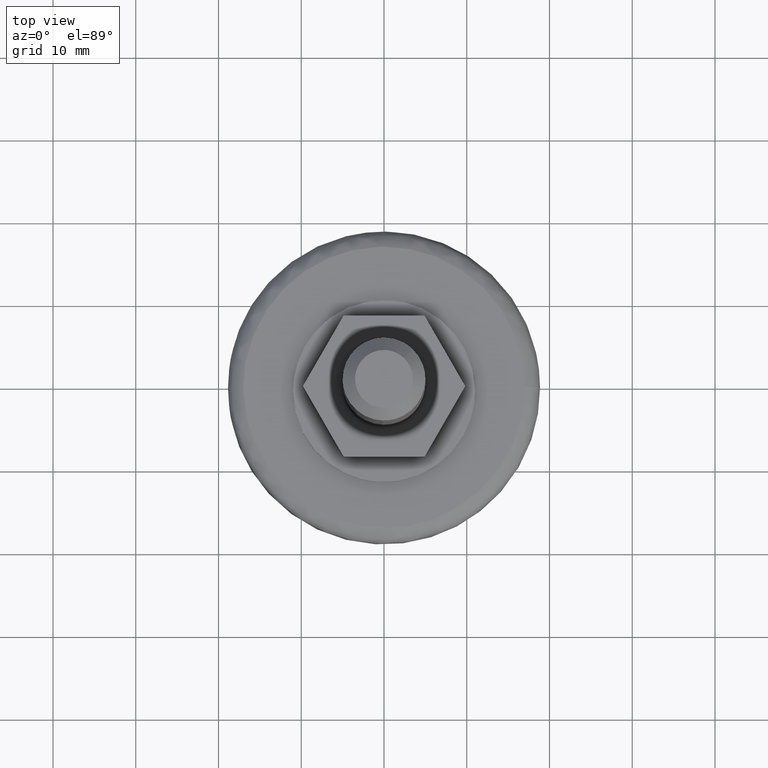
[diagram: clean part render]
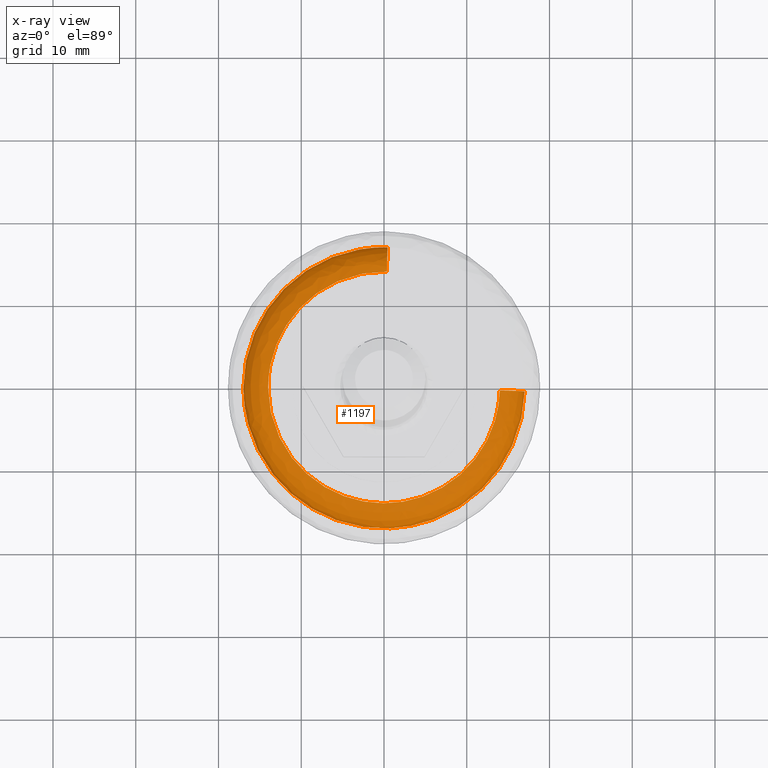
[diagram: x-ray — body ghosted, one internal face saturated and labeled with its STEP entity id]
A machine part, top view, then the same camera in x-ray: the body is ghosted and one INTERNAL B-rep face — a face not visible from any outside direction — is saturated and labeled: STEP entity #1197.
In plain terms, the highlighted face is a freeform B-spline surface patch.
Its self-contained STEP definition (entity closure, byte-faithful):
#910=CARTESIAN_POINT('',(-13.390967939593541,-10.472916386602281,7.899999999999952));
#911=VERTEX_POINT('',#910);
#912=CARTESIAN_POINT('',(-17.0,0.0,7.900000000000000));
#913=VERTEX_POINT('',#912);
#914=CARTESIAN_POINT('',(-13.390967939593542,-10.472916386602279,7.899999999999952));
#915=CARTESIAN_POINT('',(-17.000000000000007,-5.858305629689744,7.900000000000000));
#916=CARTESIAN_POINT('',(-17.0,0.0,7.900000000000000));
#924=(BOUNDED_CURVE()B_SPLINE_CURVE(2,(#914,#915,#916),.UNSPECIFIED.,.F.,.U.)B_SPLINE_CURVE_WITH_KNOTS((3,3),(0.393382016276259,0.500000000000000),.UNSPECIFIED.)CURVE()GEOMETRIC_REPRESENTATION_ITEM()RATIONAL_B_SPLINE_CURVE((0.856720372540550,0.875089262255013,1.0))REPRESENTATION_ITEM(''));
#925=EDGE_CURVE('',#911,#913,#924,.T.);
#927=CARTESIAN_POINT('',(0.427211622572553,16.994631217815201,7.900000000309981));
#928=VERTEX_POINT('',#927);
#929=CARTESIAN_POINT('',(-17.0,0.0,7.900000000000000));
#930=CARTESIAN_POINT('',(-17.000000000000004,17.000000000000004,7.900000000000000));
#931=CARTESIAN_POINT('',(0.0,17.0,7.900000000000000));
#932=CARTESIAN_POINT('',(0.213639546133312,17.000000000000004,7.900000000000000));
#933=CARTESIAN_POINT('',(0.427211622572553,16.994631217815197,7.900000000309981));
#941=(BOUNDED_CURVE()B_SPLINE_CURVE(2,(#929,#930,#931,#932,#933),.UNSPECIFIED.,.F.,.U.)B_SPLINE_CURVE_WITH_KNOTS((3,2,3),(0.500000000000000,0.750000000000000,0.754420108230931),.UNSPECIFIED.)CURVE()GEOMETRIC_REPRESENTATION_ITEM()RATIONAL_B_SPLINE_CURVE((1.0,0.707106781186548,1.0,0.994821521090956,0.989826157679908))REPRESENTATION_ITEM(''));
#942=EDGE_CURVE('',#913,#928,#941,.T.);
#959=CARTESIAN_POINT('',(16.994631217815868,-0.427211622545770,7.900000000310616));
#960=VERTEX_POINT('',#959);
#974=CARTESIAN_POINT('',(0.741525099336230,-16.983819962747901,7.900000000000286));
#975=VERTEX_POINT('',#974);
#976=CARTESIAN_POINT('',(16.994631217815876,-0.427211622545770,7.900000000310616));
#977=CARTESIAN_POINT('',(16.595831422271555,-16.291610195051103,7.900000000013279));
#978=CARTESIAN_POINT('',(0.741525099336230,-16.983819962747901,7.900000000000286));
#986=(BOUNDED_CURVE()B_SPLINE_CURVE(2,(#976,#977,#978),.UNSPECIFIED.,.F.,.U.)B_SPLINE_CURVE_WITH_KNOTS((3,3),(0.004420108230378,0.242354584450260),.UNSPECIFIED.)CURVE()GEOMETRIC_REPRESENTATION_ITEM()RATIONAL_B_SPLINE_CURVE((0.989826157681156,0.720925688587702,0.982633526816932))REPRESENTATION_ITEM(''));
#987=EDGE_CURVE('',#960,#975,#986,.T.);
#1065=CARTESIAN_POINT('',(0.741525099336230,-16.983819962747901,7.900000000000286));
#1066=CARTESIAN_POINT('',(0.370939073433604,-17.000000000000004,7.900000000000000));
#1067=CARTESIAN_POINT('',(0.0,-17.0,7.900000000000000));
#1068=CARTESIAN_POINT('',(-8.286213657466316,-16.999999999999996,7.900000000000000));
#1069=CARTESIAN_POINT('',(-13.390967939593542,-10.472916386602279,7.899999999999952));
#1077=(BOUNDED_CURVE()B_SPLINE_CURVE(2,(#1065,#1066,#1067,#1068,#1069),.UNSPECIFIED.,.F.,.U.)B_SPLINE_CURVE_WITH_KNOTS((3,2,3),(0.242354584450260,0.250000000000000,0.393382016276259),.UNSPECIFIED.)CURVE()GEOMETRIC_REPRESENTATION_ITEM()RATIONAL_B_SPLINE_CURVE((0.982633526816932,0.991042838521880,1.0,0.832017518931534,0.856720372540550))REPRESENTATION_ITEM(''));
#1078=EDGE_CURVE('',#975,#911,#1077,.T.);
#1100=CARTESIAN_POINT('',(0.427028145771030,16.987332446420989,7.690827446366622));
#1101=CARTESIAN_POINT('',(-16.560304300649960,17.414360592192015,7.690827446366623));
#1102=CARTESIAN_POINT('',(-16.987332446420989,0.427028145771031,7.690827446366622));
#1103=CARTESIAN_POINT('',(-17.414360592192015,-16.560304300649946,7.690827446366623));
#1104=CARTESIAN_POINT('',(-0.427028145771036,-16.987332446420989,7.690827446366622));
#1105=CARTESIAN_POINT('',(16.560304300649946,-17.414360592192015,7.690827446366623));
#1106=CARTESIAN_POINT('',(16.987332446420989,-0.427028145771037,7.690827446366622));
#1107=CARTESIAN_POINT('',(0.433072405922087,17.227775278106645,11.132007044478161));
#1108=CARTESIAN_POINT('',(-16.794702872184562,17.660847684028738,11.132007044478161));
#1109=CARTESIAN_POINT('',(-17.227775278106645,0.433072405922088,11.132007044478161));
#1110=CARTESIAN_POINT('',(-17.660847684028742,-16.794702872184558,11.132007044478161));
#1111=CARTESIAN_POINT('',(-0.433072405922093,-17.227775278106645,11.132007044478161));
#1112=CARTESIAN_POINT('',(16.794702872184558,-17.660847684028742,11.132007044478161));
#1113=CARTESIAN_POINT('',(17.227775278106645,-0.433072405922094,11.132007044478161));
#1114=CARTESIAN_POINT('',(0.346592976570226,13.787592632711320,10.892777051649848));
#1115=CARTESIAN_POINT('',(-13.440999656141093,14.134185609281543,10.892777051649851));
#1116=CARTESIAN_POINT('',(-13.787592632711320,0.346592976570227,10.892777051649848));
#1117=CARTESIAN_POINT('',(-14.134185609281548,-13.440999656141090,10.892777051649851));
#1118=CARTESIAN_POINT('',(-0.346592976570231,-13.787592632711320,10.892777051649848));
#1119=CARTESIAN_POINT('',(13.440999656141088,-14.134185609281548,10.892777051649851));
#1120=CARTESIAN_POINT('',(13.787592632711320,-0.346592976570231,10.892777051649848));
#1128=(BOUNDED_SURFACE()B_SPLINE_SURFACE(2,2,((#1100,#1107,#1114),(#1101,#1108,#1115),(#1102,#1109,#1116),(#1103,#1110,#1117),(#1104,#1111,#1118),(#1105,#1112,#1119),(#1106,#1113,#1120)),.UNSPECIFIED.,.F.,.F.,.U.)B_SPLINE_SURFACE_WITH_KNOTS((3,2,2,3),(3,3),(0.0,28.154425420662768,56.308850841325537,84.463276261988312),(0.0,5.467110975578634),.UNSPECIFIED.)GEOMETRIC_REPRESENTATION_ITEM()RATIONAL_B_SPLINE_SURFACE(((0.910892941386805,0.599412934105556,0.915966621324616),(0.644098575789570,0.423848950436964,0.647686209279166),(0.910892941386805,0.599412934105556,0.915966621324616),(0.644098575789570,0.423848950436964,0.647686209279166),(0.910892941386805,0.599412934105556,0.915966621324616),(0.644098575789570,0.423848950436964,0.647686209279166),(0.910892941386805,0.599412934105556,0.915966621324616)))REPRESENTATION_ITEM('')SURFACE());
#1129=ORIENTED_EDGE('',*,*,#942,.F.);
#1130=ORIENTED_EDGE('',*,*,#925,.F.);
#1131=ORIENTED_EDGE('',*,*,#1078,.F.);
#1132=ORIENTED_EDGE('',*,*,#987,.F.);
#1133=CARTESIAN_POINT('',(13.995578719166121,-0.351821337102341,10.900000000000000));
#1134=VERTEX_POINT('',#1133);
#1135=CARTESIAN_POINT('',(16.994631217815868,-0.427211622545770,7.900000000310616));
#1136=CARTESIAN_POINT('',(16.994631217195053,-0.427211622521124,10.899999861598843));
#1137=CARTESIAN_POINT('',(13.995578719166121,-0.351821337102341,10.899999999999999));
#1145=(BOUNDED_CURVE()B_SPLINE_CURVE(2,(#1135,#1136,#1137),.UNSPECIFIED.,.F.,.U.)B_SPLINE_CURVE_WITH_KNOTS((3,3),(-1.723441281771565,-0.263586926674524),.UNSPECIFIED.)CURVE()GEOMETRIC_REPRESENTATION_ITEM()RATIONAL_B_SPLINE_CURVE((0.883897567063522,0.626638735689815,0.888510391932750))REPRESENTATION_ITEM(''));
#1146=EDGE_CURVE('',#960,#1134,#1145,.T.);
#1147=ORIENTED_EDGE('',*,*,#1146,.T.);
#1148=CARTESIAN_POINT('',(-14.0,0.0,10.900000000000000));
#1149=VERTEX_POINT('',#1148);
#1150=CARTESIAN_POINT('',(-14.0,0.0,10.900000000000000));
#1151=CARTESIAN_POINT('',(-13.999999999999998,-13.999999999999998,10.900000000000000));
#1152=CARTESIAN_POINT('',(0.0,-14.0,10.900000000000000));
#1153=CARTESIAN_POINT('',(13.652490268175013,-14.0,10.900000000000000));
#1154=CARTESIAN_POINT('',(13.995578719166121,-0.351821337102341,10.900000000000000));
#1162=(BOUNDED_CURVE()B_SPLINE_CURVE(2,(#1150,#1151,#1152,#1153,#1154),.UNSPECIFIED.,.F.,.U.)B_SPLINE_CURVE_WITH_KNOTS((3,2,3),(0.500000000000000,0.750000000000000,0.995579891790896),.UNSPECIFIED.)CURVE()GEOMETRIC_REPRESENTATION_ITEM()RATIONAL_B_SPLINE_CURVE((1.0,0.707106781186547,1.0,0.712285260070020,0.989826157729242))REPRESENTATION_ITEM(''));
#1163=EDGE_CURVE('',#1149,#1134,#1162,.T.);
#1164=ORIENTED_EDGE('',*,*,#1163,.F.);
#1165=CARTESIAN_POINT('',(0.351821337170723,13.995578719161911,10.900000000000000));
#1166=VERTEX_POINT('',#1165);
#1167=CARTESIAN_POINT('',(0.351821337170723,13.995578719161907,10.900000000000000));
#1168=CARTESIAN_POINT('',(0.175938448951990,14.000000000000004,10.900000000000002));
#1169=CARTESIAN_POINT('',(0.0,14.0,10.900000000000000));
#1170=CARTESIAN_POINT('',(-13.999999999999998,13.999999999999998,10.900000000000000));
#1171=CARTESIAN_POINT('',(-14.0,0.0,10.900000000000000));
#1179=(BOUNDED_CURVE()B_SPLINE_CURVE(2,(#1167,#1168,#1169,#1170,#1171),.UNSPECIFIED.,.F.,.U.)B_SPLINE_CURVE_WITH_KNOTS((3,2,3),(0.245579891789185,0.250000000000000,0.500000000000000),.UNSPECIFIED.)CURVE()GEOMETRIC_REPRESENTATION_ITEM()RATIONAL_B_SPLINE_CURVE((0.989826157725375,0.994821521114523,1.0,0.707106781186547,1.0))REPRESENTATION_ITEM(''));
#1180=EDGE_CURVE('',#1166,#1149,#1179,.T.);
#1181=ORIENTED_EDGE('',*,*,#1180,.F.);
#1182=CARTESIAN_POINT('',(0.427211622572553,16.994631217815201,7.900000000309981));
#1183=CARTESIAN_POINT('',(0.427211622521158,16.994631217196329,10.899999861603840));
#1184=CARTESIAN_POINT('',(0.351821337170723,13.995578719161902,10.899999999999997));
#1192=(BOUNDED_CURVE()B_SPLINE_CURVE(2,(#1182,#1183,#1184),.UNSPECIFIED.,.F.,.U.)B_SPLINE_CURVE_WITH_KNOTS((3,3),(-1.723441281772000,-0.263586926672802),.UNSPECIFIED.)CURVE()GEOMETRIC_REPRESENTATION_ITEM()RATIONAL_B_SPLINE_CURVE((0.883897567063675,0.626638735689433,0.888510391933368))REPRESENTATION_ITEM(''));
#1193=EDGE_CURVE('',#928,#1166,#1192,.T.);
#1194=ORIENTED_EDGE('',*,*,#1193,.F.);
#1195=EDGE_LOOP('',(#1129,#1130,#1131,#1132,#1147,#1164,#1181,#1194));
#1196=FACE_OUTER_BOUND('',#1195,.T.);
#1197=ADVANCED_FACE('',(#1196),#1128,.T.);